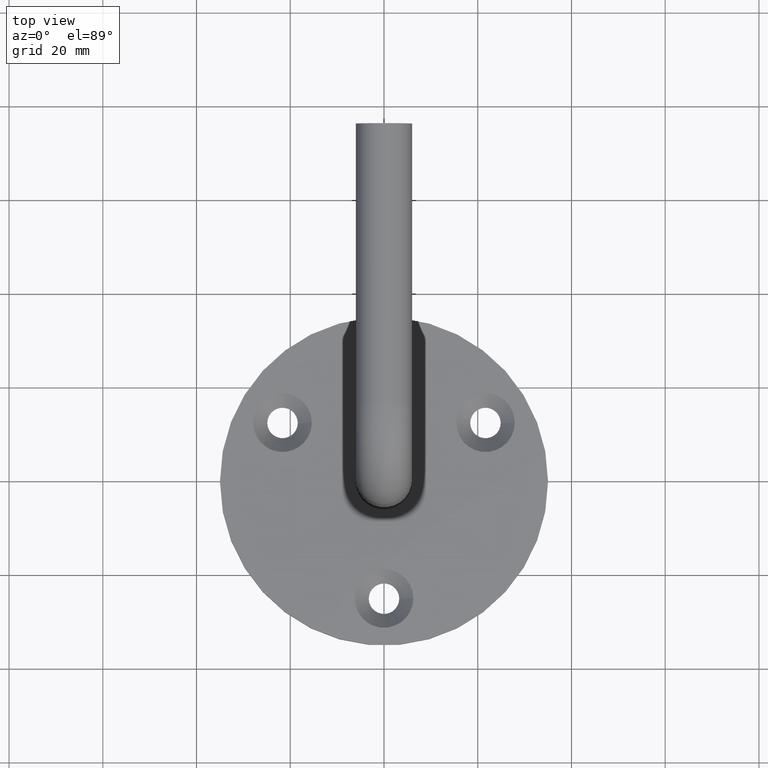
[diagram: clean part render]
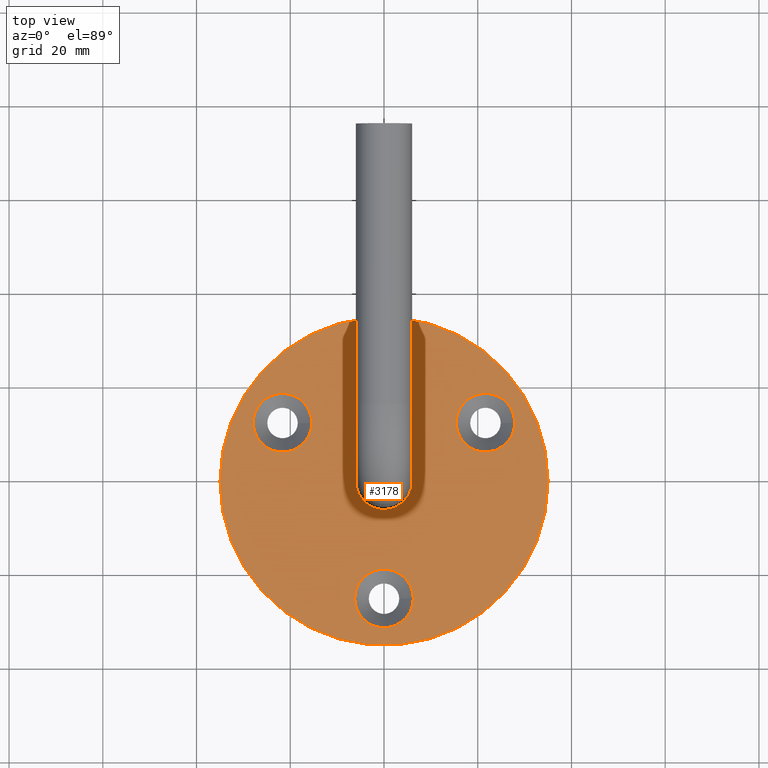
[diagram: same view with one face highlighted and labeled with its STEP entity id]
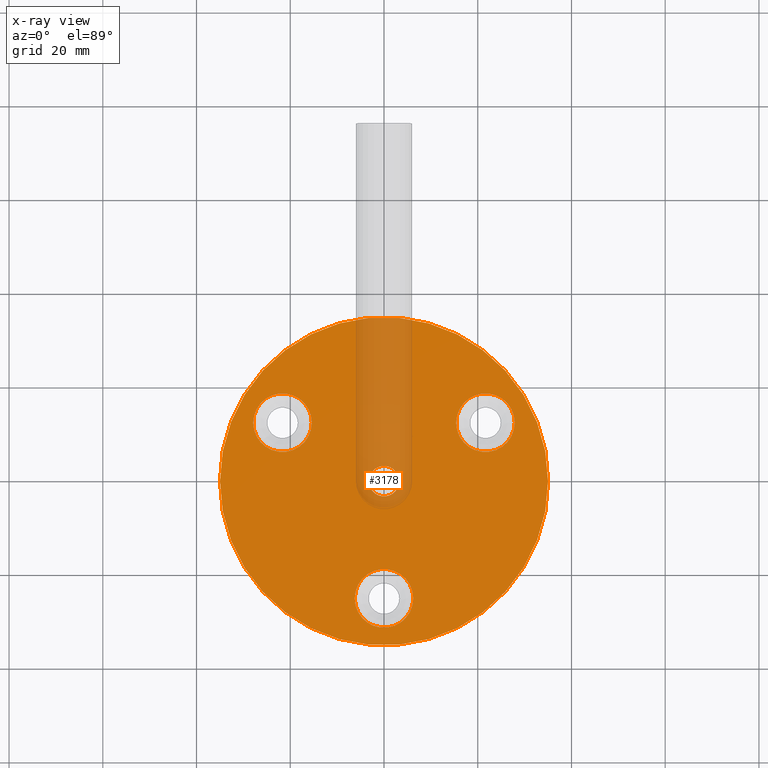
[diagram: x-ray of the same camera — body ghosted, the highlighted face saturated]
A machine part, top view. The second image highlights one B-rep face of the part: STEP entity #3178.
The next image is the same camera in x-ray: the body ghosted, the highlighted face saturated — about 13% of this face is hidden behind the body in this view.
In plain terms, the highlighted planar face has unit normal (0, 0, 1).
Its self-contained STEP definition (entity closure, byte-faithful):
#87 = EDGE_CURVE ( 'NONE', #11304, #11304, #4688, .T. ) ;
#250 = CARTESIAN_POINT ( 'NONE',  ( -21.65063509461098690, 12.49999999999995204, 4.000000000000001776 ) ) ;
#346 = CARTESIAN_POINT ( 'NONE',  ( 3.250000000000010658, 0.000000000000000000, 4.000000000000000000 ) ) ;
#1018 = CIRCLE ( 'NONE', #15796, 35.00000000000000711 ) ;
#1349 = FACE_BOUND ( 'NONE', #1401, .T. ) ;
#1392 = EDGE_LOOP ( 'NONE', ( #13716 ) ) ;
#1401 = EDGE_LOOP ( 'NONE', ( #3627 ) ) ;
#1518 = EDGE_LOOP ( 'NONE', ( #16987 ) ) ;
#1665 = DIRECTION ( 'NONE',  ( 1.000000000000000000, 0.000000000000000000, 0.000000000000000000 ) ) ;
#2227 = CIRCLE ( 'NONE', #17087, 6.249999999999998224 ) ;
#2282 = CARTESIAN_POINT ( 'NONE',  ( 21.65063509461100466, 12.49999999999994138, 4.000000000000001776 ) ) ;
#2403 = CARTESIAN_POINT ( 'NONE',  ( -5.875354786516249070E-16, 7.704264988859396834E-16, 4.000000000000000000 ) ) ;
#2939 = DIRECTION ( 'NONE',  ( 1.000000000000000000, 0.000000000000000000, 0.000000000000000000 ) ) ;
#3042 = DIRECTION ( 'NONE',  ( 1.000000000000000000, 0.000000000000000000, 0.000000000000000000 ) ) ;
#3161 = CARTESIAN_POINT ( 'NONE',  ( -5.875354786516249070E-16, 7.704264988859396834E-16, 4.000000000000000000 ) ) ;
#3178 = ADVANCED_FACE ( 'NONE', ( #5105, #10428, #17482, #1349, #15928 ), #16667, .T. ) ;
#3627 = ORIENTED_EDGE ( 'NONE', *, *, #9219, .F. ) ;
#3911 = CIRCLE ( 'NONE', #6092, 6.249999999999998224 ) ;
#4190 = EDGE_LOOP ( 'NONE', ( #7851 ) ) ;
#4318 = AXIS2_PLACEMENT_3D ( 'NONE', #4747, #10695, #13384 ) ;
#4688 = CIRCLE ( 'NONE', #14548, 6.249999999999998224 ) ;
#4730 = EDGE_CURVE ( 'NONE', #8424, #8424, #2227, .T. ) ;
#4747 = CARTESIAN_POINT ( 'NONE',  ( 0.000000000000000000, 0.000000000000000000, 4.000000000000000000 ) ) ;
#5105 = FACE_BOUND ( 'NONE', #1392, .T. ) ;
#5313 = VERTEX_POINT ( 'NONE', #346 ) ;
#6092 = AXIS2_PLACEMENT_3D ( 'NONE', #11353, #14040, #2939 ) ;
#7851 = ORIENTED_EDGE ( 'NONE', *, *, #11367, .T. ) ;
#8424 = VERTEX_POINT ( 'NONE', #16027 ) ;
#9083 = VERTEX_POINT ( 'NONE', #17287 ) ;
#9219 = EDGE_CURVE ( 'NONE', #11942, #11942, #3911, .T. ) ;
#9460 = DIRECTION ( 'NONE',  ( -0.000000000000000000, -0.000000000000000000, 1.000000000000000000 ) ) ;
#10158 = DIRECTION ( 'NONE',  ( -0.000000000000000000, -0.000000000000000000, 1.000000000000000000 ) ) ;
#10428 = FACE_BOUND ( 'NONE', #12236, .T. ) ;
#10695 = DIRECTION ( 'NONE',  ( 0.000000000000000000, 0.000000000000000000, 1.000000000000000000 ) ) ;
#10939 = DIRECTION ( 'NONE',  ( 1.000000000000000000, 0.000000000000000000, -0.000000000000000000 ) ) ;
#11304 = VERTEX_POINT ( 'NONE', #11429 ) ;
#11353 = CARTESIAN_POINT ( 'NONE',  ( 0.000000000000000000, -25.00000000000000000, 4.000000000000001776 ) ) ;
#11367 = EDGE_CURVE ( 'NONE', #9083, #9083, #1018, .T. ) ;
#11429 = CARTESIAN_POINT ( 'NONE',  ( 27.90063509461100466, 12.49999999999994138, 4.000000000000001776 ) ) ;
#11942 = VERTEX_POINT ( 'NONE', #14539 ) ;
#12236 = EDGE_LOOP ( 'NONE', ( #18121 ) ) ;
#12487 = CIRCLE ( 'NONE', #4318, 3.250000000000010658 ) ;
#13031 = DIRECTION ( 'NONE',  ( 0.000000000000000000, 0.000000000000000000, 1.000000000000000000 ) ) ;
#13161 = EDGE_CURVE ( 'NONE', #5313, #5313, #12487, .T. ) ;
#13384 = DIRECTION ( 'NONE',  ( 1.000000000000000000, 0.000000000000000000, 0.000000000000000000 ) ) ;
#13716 = ORIENTED_EDGE ( 'NONE', *, *, #13161, .F. ) ;
#13874 = DIRECTION ( 'NONE',  ( 0.000000000000000000, 0.000000000000000000, 1.000000000000000000 ) ) ;
#13993 = AXIS2_PLACEMENT_3D ( 'NONE', #2403, #13874, #10939 ) ;
#14040 = DIRECTION ( 'NONE',  ( -0.000000000000000000, -0.000000000000000000, 1.000000000000000000 ) ) ;
#14539 = CARTESIAN_POINT ( 'NONE',  ( 6.249999999999998224, -25.00000000000000000, 4.000000000000001776 ) ) ;
#14548 = AXIS2_PLACEMENT_3D ( 'NONE', #2282, #9460, #18039 ) ;
#15796 = AXIS2_PLACEMENT_3D ( 'NONE', #3161, #13031, #3042 ) ;
#15928 = FACE_OUTER_BOUND ( 'NONE', #4190, .T. ) ;
#16027 = CARTESIAN_POINT ( 'NONE',  ( -15.40063509461098867, 12.49999999999995204, 4.000000000000001776 ) ) ;
#16667 = PLANE ( 'NONE',  #13993 ) ;
#16987 = ORIENTED_EDGE ( 'NONE', *, *, #87, .F. ) ;
#17087 = AXIS2_PLACEMENT_3D ( 'NONE', #250, #10158, #1665 ) ;
#17287 = CARTESIAN_POINT ( 'NONE',  ( 35.00000000000000711, 7.704264988859396834E-16, 4.000000000000000000 ) ) ;
#17482 = FACE_BOUND ( 'NONE', #1518, .T. ) ;
#18039 = DIRECTION ( 'NONE',  ( 1.000000000000000000, 0.000000000000000000, 0.000000000000000000 ) ) ;
#18121 = ORIENTED_EDGE ( 'NONE', *, *, #4730, .F. ) ;